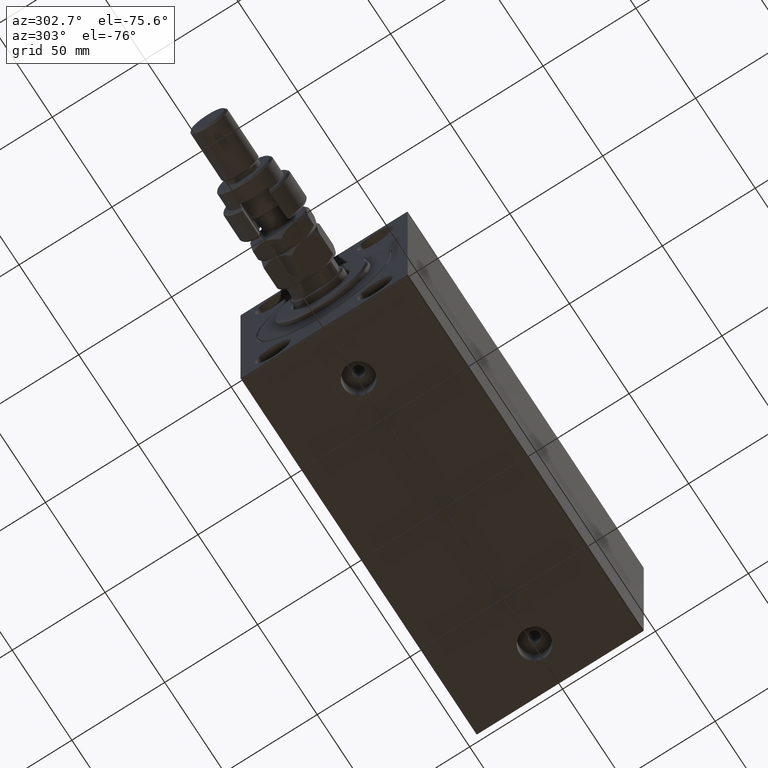
[diagram: clean part render]
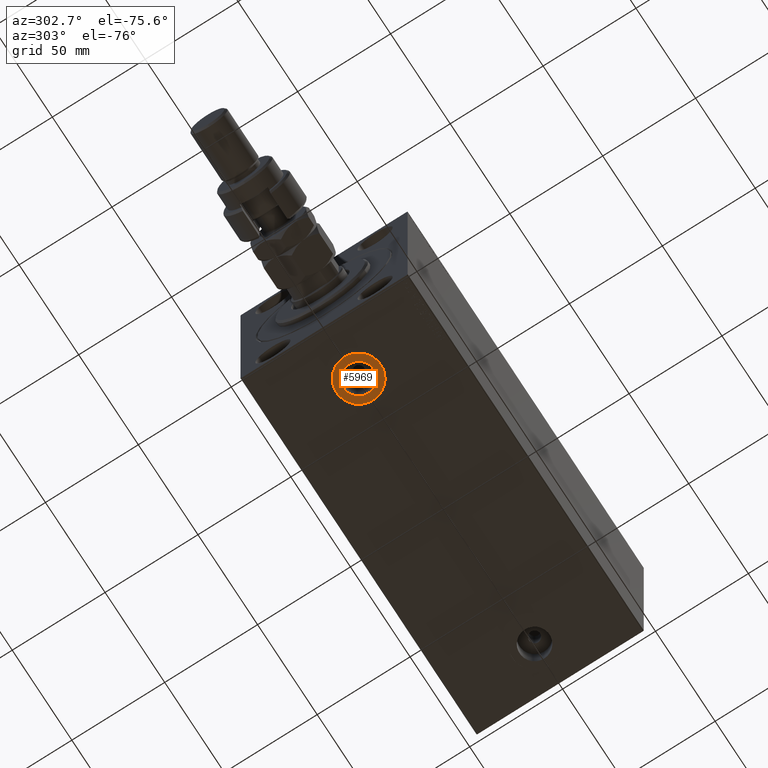
[diagram: same view with one face highlighted and labeled with its STEP entity id]
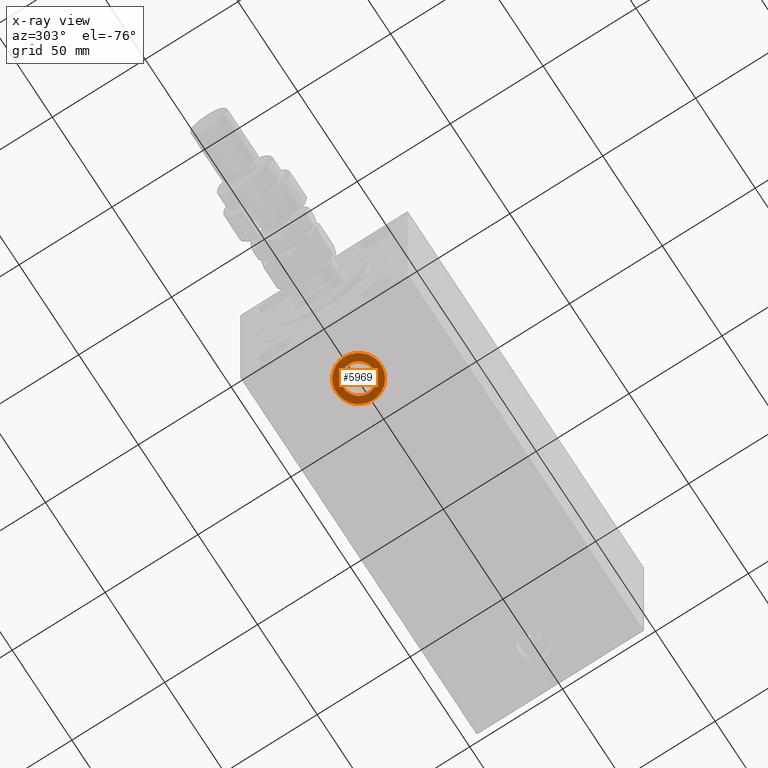
[diagram: x-ray of the same camera — body ghosted, the highlighted face saturated]
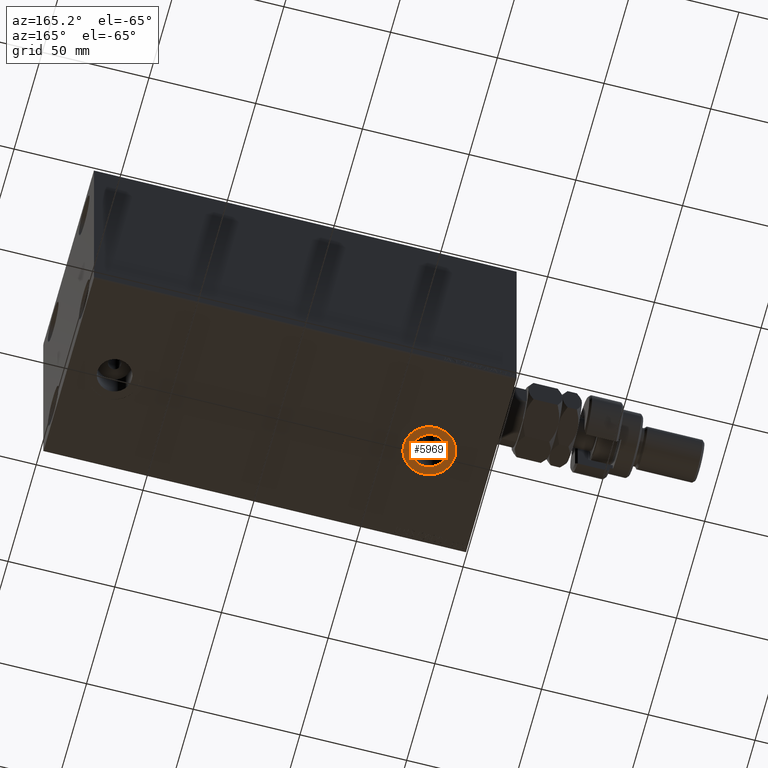
[diagram: same view with one face highlighted and labeled with its STEP entity id]
A machine part, auxiliary view. The second image highlights one B-rep face of the part: STEP entity #5969.
The next image is the same camera in x-ray: the body ghosted, the highlighted face saturated — about 0% of this face is hidden behind the body in this view.
A second angle (auxiliary view) of the same face is appended — the face is thin or edge-on in the first view.
In plain terms, the highlighted planar face has unit normal (0, 0, -1).
Its self-contained STEP definition (entity closure, byte-faithful):
#448 = CIRCLE ( 'NONE', #33151, 8.084999999999999076 ) ;
#1894 = EDGE_CURVE ( 'NONE', #39405, #6471, #32499, .T. ) ;
#2852 = CARTESIAN_POINT ( 'NONE',  ( 29.00000000000000000, -6.196433163362529681E-15, -57.40000000000000568 ) ) ;
#2882 = AXIS2_PLACEMENT_3D ( 'NONE', #17502, #47655, #28461 ) ;
#3657 = CIRCLE ( 'NONE', #2882, 12.00000000000000000 ) ;
#3759 = ORIENTED_EDGE ( 'NONE', *, *, #46544, .T. ) ;
#3993 = DIRECTION ( 'NONE',  ( 0.000000000000000000, 0.000000000000000000, -1.000000000000000000 ) ) ;
#5068 = ORIENTED_EDGE ( 'NONE', *, *, #1894, .F. ) ;
#5969 = ADVANCED_FACE ( 'NONE', ( #47937, #14588 ), #29453, .T. ) ;
#6471 = VERTEX_POINT ( 'NONE', #33413 ) ;
#10935 = DIRECTION ( 'NONE',  ( -1.000000000000000000, 0.000000000000000000, -0.000000000000000000 ) ) ;
#14588 = FACE_OUTER_BOUND ( 'NONE', #33011, .T. ) ;
#17502 = CARTESIAN_POINT ( 'NONE',  ( 29.00000000000000000, -6.196433163362529681E-15, -57.40000000000000568 ) ) ;
#17881 = CIRCLE ( 'NONE', #36545, 12.00000000000000000 ) ;
#17928 = VERTEX_POINT ( 'NONE', #39624 ) ;
#18685 = DIRECTION ( 'NONE',  ( -1.000000000000000000, 0.000000000000000000, 0.000000000000000000 ) ) ;
#21124 = CARTESIAN_POINT ( 'NONE',  ( 41.00000000000000711, -4.726857004385706325E-15, -57.40000000000000568 ) ) ;
#22280 = ORIENTED_EDGE ( 'NONE', *, *, #40545, .T. ) ;
#22282 = CARTESIAN_POINT ( 'NONE',  ( 29.00000000000000000, -6.196433163362529681E-15, -57.40000000000000568 ) ) ;
#25241 = EDGE_LOOP ( 'NONE', ( #5068, #28101 ) ) ;
#28101 = ORIENTED_EDGE ( 'NONE', *, *, #37125, .F. ) ;
#28461 = DIRECTION ( 'NONE',  ( -1.000000000000000000, 0.000000000000000000, 0.000000000000000000 ) ) ;
#28646 = AXIS2_PLACEMENT_3D ( 'NONE', #2852, #40834, #18685 ) ;
#29453 = PLANE ( 'NONE',  #31112 ) ;
#30079 = CARTESIAN_POINT ( 'NONE',  ( 20.91500000000000270, -6.196433163362529681E-15, -57.40000000000000568 ) ) ;
#31112 = AXIS2_PLACEMENT_3D ( 'NONE', #36994, #44292, #10935 ) ;
#32257 = DIRECTION ( 'NONE',  ( -1.000000000000000000, 0.000000000000000000, 0.000000000000000000 ) ) ;
#32499 = CIRCLE ( 'NONE', #28646, 8.084999999999999076 ) ;
#33011 = EDGE_LOOP ( 'NONE', ( #22280, #3759 ) ) ;
#33151 = AXIS2_PLACEMENT_3D ( 'NONE', #46609, #40247, #32257 ) ;
#33413 = CARTESIAN_POINT ( 'NONE',  ( 37.08500000000000085, -5.206306226251895314E-15, -57.40000000000000568 ) ) ;
#36545 = AXIS2_PLACEMENT_3D ( 'NONE', #22282, #3993, #37365 ) ;
#36994 = CARTESIAN_POINT ( 'NONE',  ( 0.000000000000000000, 0.000000000000000000, -57.40000000000000568 ) ) ;
#37125 = EDGE_CURVE ( 'NONE', #6471, #39405, #448, .T. ) ;
#37365 = DIRECTION ( 'NONE',  ( -1.000000000000000000, 0.000000000000000000, 0.000000000000000000 ) ) ;
#39405 = VERTEX_POINT ( 'NONE', #30079 ) ;
#39624 = CARTESIAN_POINT ( 'NONE',  ( 17.00000000000000000, -6.196433163362529681E-15, -57.40000000000000568 ) ) ;
#40247 = DIRECTION ( 'NONE',  ( 0.000000000000000000, 0.000000000000000000, -1.000000000000000000 ) ) ;
#40545 = EDGE_CURVE ( 'NONE', #17928, #44005, #3657, .T. ) ;
#40834 = DIRECTION ( 'NONE',  ( 0.000000000000000000, 0.000000000000000000, -1.000000000000000000 ) ) ;
#44005 = VERTEX_POINT ( 'NONE', #21124 ) ;
#44292 = DIRECTION ( 'NONE',  ( 0.000000000000000000, 0.000000000000000000, -1.000000000000000000 ) ) ;
#46544 = EDGE_CURVE ( 'NONE', #44005, #17928, #17881, .T. ) ;
#46609 = CARTESIAN_POINT ( 'NONE',  ( 29.00000000000000000, -6.196433163362529681E-15, -57.40000000000000568 ) ) ;
#47655 = DIRECTION ( 'NONE',  ( 0.000000000000000000, 0.000000000000000000, -1.000000000000000000 ) ) ;
#47937 = FACE_BOUND ( 'NONE', #25241, .T. ) ;